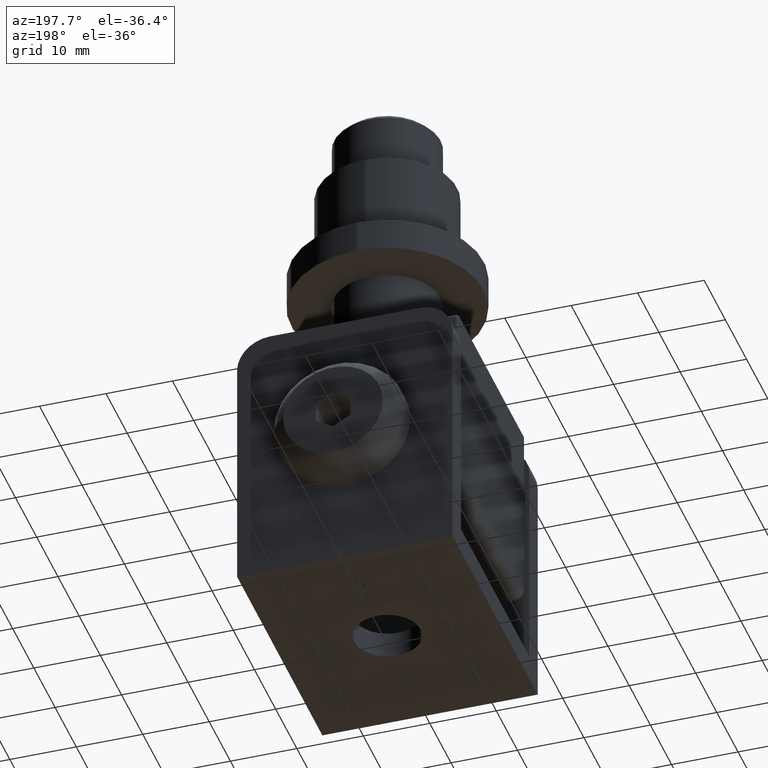
[diagram: clean part render]
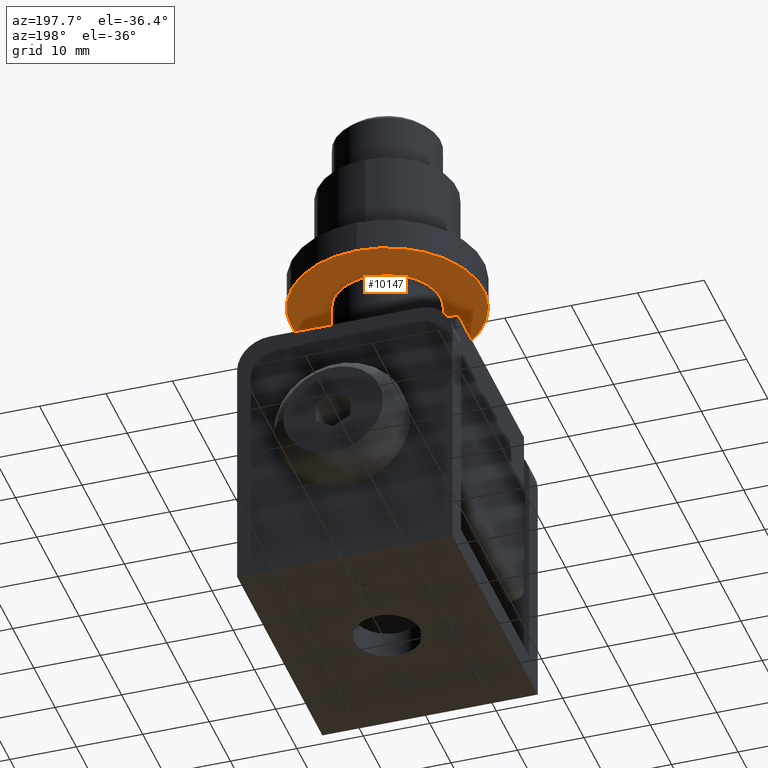
[diagram: same view with one face highlighted and labeled with its STEP entity id]
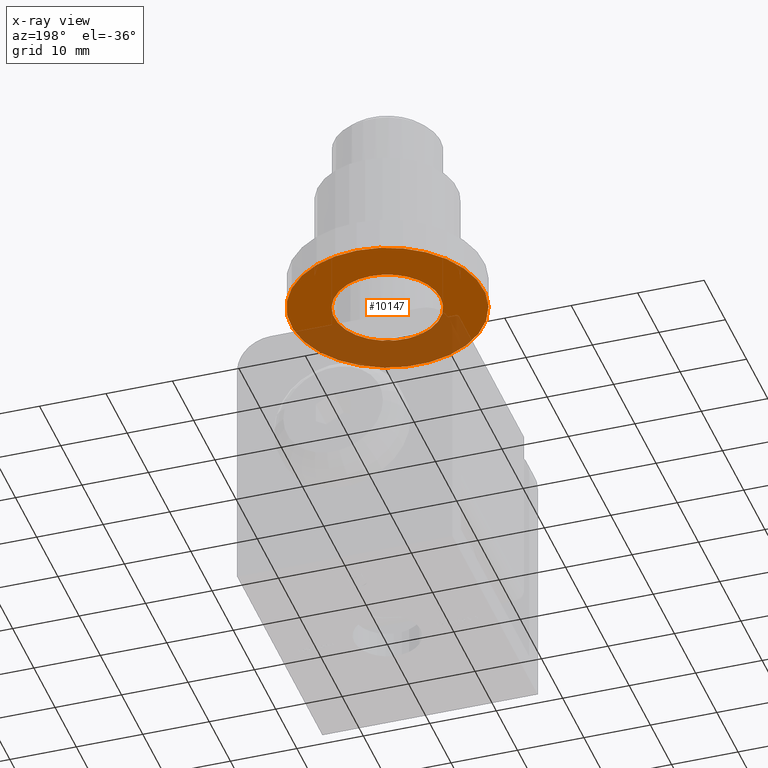
[diagram: x-ray of the same camera — body ghosted, the highlighted face saturated]
A machine part, auxiliary view. The second image highlights one B-rep face of the part: STEP entity #10147.
The next image is the same camera in x-ray: the body ghosted, the highlighted face saturated — about 37% of this face is hidden behind the body in this view.
In plain terms, the highlighted planar face has unit normal (0, 0, -1).
Its self-contained STEP definition (entity closure, byte-faithful):
#219 = FACE_BOUND ( 'NONE', #13907, .T. ) ;
#674 = DIRECTION ( 'NONE',  ( 0.000000000000000000, 1.000000000000000000, 2.392722035830078479E-16 ) ) ;
#1495 = DIRECTION ( 'NONE',  ( 0.000000000000000000, -2.755455298081544778E-16, 1.000000000000000000 ) ) ;
#1532 = EDGE_LOOP ( 'NONE', ( #15159 ) ) ;
#1980 = PLANE ( 'NONE',  #4816 ) ;
#2790 = AXIS2_PLACEMENT_3D ( 'NONE', #11412, #7834, #674 ) ;
#3308 = CARTESIAN_POINT ( 'NONE',  ( 0.000000000000000000, 8.000000000000000000, -9.500000000000007105 ) ) ;
#3770 = FACE_OUTER_BOUND ( 'NONE', #1532, .T. ) ;
#4638 = DIRECTION ( 'NONE',  ( 0.000000000000000000, 1.000000000000000000, 2.755455298081544778E-16 ) ) ;
#4670 = CIRCLE ( 'NONE', #7488, 8.000000000000003553 ) ;
#4737 = DIRECTION ( 'NONE',  ( -0.000000000000000000, 2.755455298081544778E-16, -1.000000000000000000 ) ) ;
#4816 = AXIS2_PLACEMENT_3D ( 'NONE', #6827, #4737, #4638 ) ;
#5032 = DIRECTION ( 'NONE',  ( 0.000000000000000000, 1.000000000000000000, 2.168404344971007882E-16 ) ) ;
#6827 = CARTESIAN_POINT ( 'NONE',  ( 0.000000000000000000, 14.50000000000000533, -9.499999999999994671 ) ) ;
#7365 = VERTEX_POINT ( 'NONE', #3308 ) ;
#7488 = AXIS2_PLACEMENT_3D ( 'NONE', #12047, #1495, #5032 ) ;
#7724 = VERTEX_POINT ( 'NONE', #15296 ) ;
#7834 = DIRECTION ( 'NONE',  ( -0.000000000000000000, 2.755455298081544778E-16, -1.000000000000000000 ) ) ;
#7968 = EDGE_CURVE ( 'NONE', #7724, #7724, #10159, .T. ) ;
#10147 = ADVANCED_FACE ( 'NONE', ( #219, #3770 ), #1980, .T. ) ;
#10159 = CIRCLE ( 'NONE', #2790, 14.50000000000000178 ) ;
#11412 = CARTESIAN_POINT ( 'NONE',  ( 0.000000000000000000, 4.255647627037052709E-15, -9.500000000000008882 ) ) ;
#11617 = ORIENTED_EDGE ( 'NONE', *, *, #13827, .T. ) ;
#12047 = CARTESIAN_POINT ( 'NONE',  ( 0.000000000000000000, -2.617682533177467342E-15, -9.500000000000008882 ) ) ;
#13827 = EDGE_CURVE ( 'NONE', #7365, #7365, #4670, .T. ) ;
#13907 = EDGE_LOOP ( 'NONE', ( #11617 ) ) ;
#15159 = ORIENTED_EDGE ( 'NONE', *, *, #7968, .T. ) ;
#15296 = CARTESIAN_POINT ( 'NONE',  ( 0.000000000000000000, 14.50000000000000533, -9.500000000000005329 ) ) ;